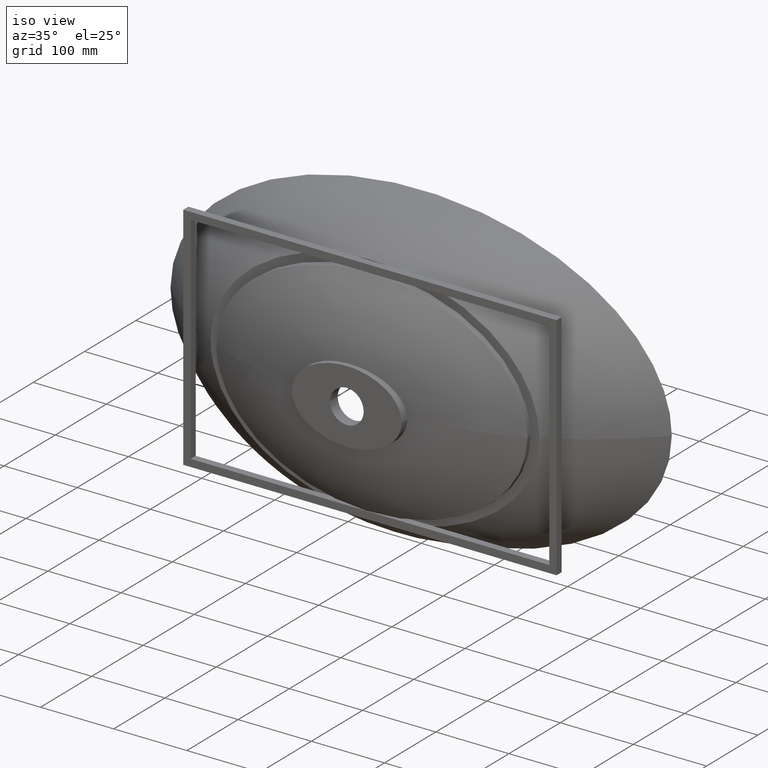
[diagram: clean part render]
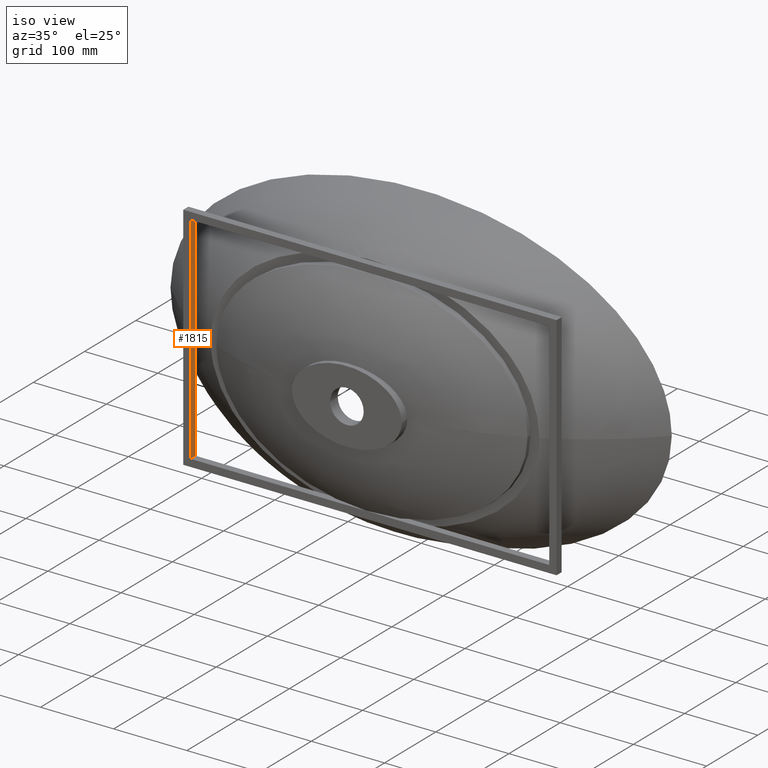
[diagram: same view with one face highlighted and labeled with its STEP entity id]
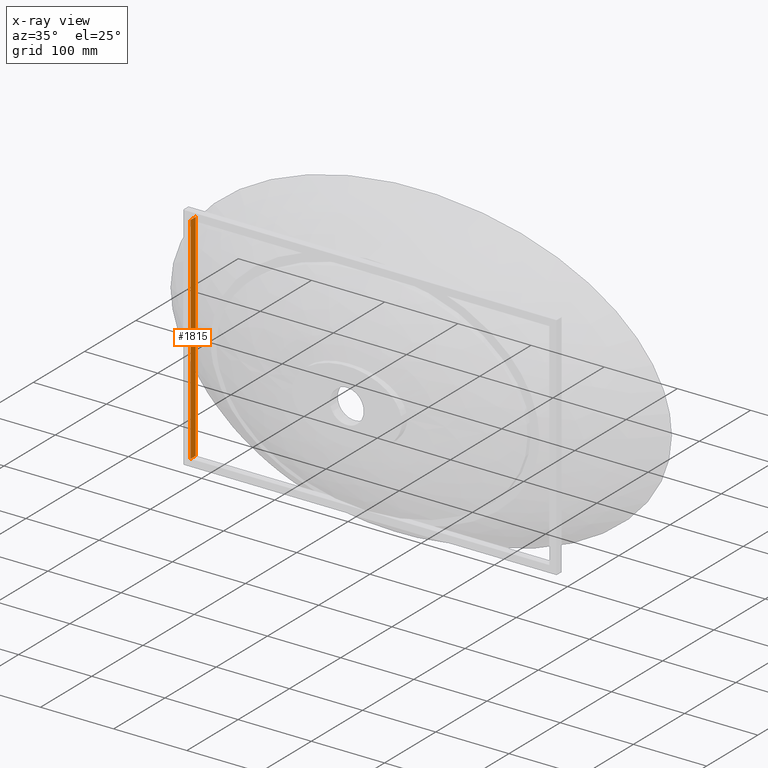
[diagram: x-ray of the same camera — body ghosted, the highlighted face saturated]
A machine part, iso view. The second image highlights one B-rep face of the part: STEP entity #1815.
The next image is the same camera in x-ray: the body ghosted, the highlighted face saturated — about 0% of this face is hidden behind the body in this view.
In plain terms, the highlighted planar face has unit normal (-1, 0, 0).
Its self-contained STEP definition (entity closure, byte-faithful):
#159 = CARTESIAN_POINT ( 'NONE',  ( -245.0000000000000000, -90.00000000000000000, -147.5000000000000300 ) ) ;
#181 = VERTEX_POINT ( 'NONE', #2881 ) ;
#182 = CARTESIAN_POINT ( 'NONE',  ( -245.0000000000000000, -90.00000000000000000, 147.5000000000000000 ) ) ;
#205 = AXIS2_PLACEMENT_3D ( 'NONE', #1652, #552, #1666 ) ;
#420 = EDGE_LOOP ( 'NONE', ( #1737, #2732, #1387, #3349 ) ) ;
#510 = CARTESIAN_POINT ( 'NONE',  ( -245.0000000000000000, -99.99999999999998600, -147.5000000000000300 ) ) ;
#521 = CARTESIAN_POINT ( 'NONE',  ( -245.0000000000000000, -99.99999999999998600, 147.5000000000000000 ) ) ;
#528 = DIRECTION ( 'NONE',  ( -0.0000000000000000000, -0.0000000000000000000, 1.000000000000000000 ) ) ;
#552 = DIRECTION ( 'NONE',  ( -1.000000000000000000, 0.0000000000000000000, 0.0000000000000000000 ) ) ;
#933 = DIRECTION ( 'NONE',  ( 0.0000000000000000000, 1.000000000000000000, 0.0000000000000000000 ) ) ;
#1317 = LINE ( 'NONE', #3317, #3198 ) ;
#1322 = VERTEX_POINT ( 'NONE', #159 ) ;
#1387 = ORIENTED_EDGE ( 'NONE', *, *, #1674, .F. ) ;
#1652 = CARTESIAN_POINT ( 'NONE',  ( -245.0000000000000000, -99.99999999999998600, 147.5000000000000000 ) ) ;
#1657 = PLANE ( 'NONE',  #205 ) ;
#1666 = DIRECTION ( 'NONE',  ( 0.0000000000000000000, 0.0000000000000000000, 1.000000000000000000 ) ) ;
#1674 = EDGE_CURVE ( 'NONE', #181, #2271, #3934, .T. ) ;
#1675 = CARTESIAN_POINT ( 'NONE',  ( -245.0000000000000000, -90.00000000000000000, 147.5000000000000000 ) ) ;
#1737 = ORIENTED_EDGE ( 'NONE', *, *, #2058, .T. ) ;
#1743 = DIRECTION ( 'NONE',  ( -0.0000000000000000000, -0.0000000000000000000, 1.000000000000000000 ) ) ;
#1815 = ADVANCED_FACE ( 'NONE', ( #2446 ), #1657, .F. ) ;
#2010 = DIRECTION ( 'NONE',  ( 0.0000000000000000000, 1.000000000000000000, 0.0000000000000000000 ) ) ;
#2020 = VECTOR ( 'NONE', #933, 1000.000000000000000 ) ;
#2058 = EDGE_CURVE ( 'NONE', #1322, #3332, #4593, .T. ) ;
#2133 = LINE ( 'NONE', #510, #2020 ) ;
#2271 = VERTEX_POINT ( 'NONE', #4561 ) ;
#2446 = FACE_OUTER_BOUND ( 'NONE', #420, .T. ) ;
#2732 = ORIENTED_EDGE ( 'NONE', *, *, #3316, .F. ) ;
#2881 = CARTESIAN_POINT ( 'NONE',  ( -245.0000000000000000, -99.99999999999998600, -147.5000000000000300 ) ) ;
#3095 = VECTOR ( 'NONE', #528, 1000.000000000000000 ) ;
#3198 = VECTOR ( 'NONE', #2010, 1000.000000000000000 ) ;
#3218 = VECTOR ( 'NONE', #1743, 1000.000000000000000 ) ;
#3316 = EDGE_CURVE ( 'NONE', #2271, #3332, #1317, .T. ) ;
#3317 = CARTESIAN_POINT ( 'NONE',  ( -245.0000000000000000, -99.99999999999998600, 147.5000000000000000 ) ) ;
#3332 = VERTEX_POINT ( 'NONE', #182 ) ;
#3349 = ORIENTED_EDGE ( 'NONE', *, *, #3876, .T. ) ;
#3876 = EDGE_CURVE ( 'NONE', #181, #1322, #2133, .T. ) ;
#3934 = LINE ( 'NONE', #521, #3095 ) ;
#4561 = CARTESIAN_POINT ( 'NONE',  ( -245.0000000000000000, -99.99999999999998600, 147.5000000000000000 ) ) ;
#4593 = LINE ( 'NONE', #1675, #3218 ) ;